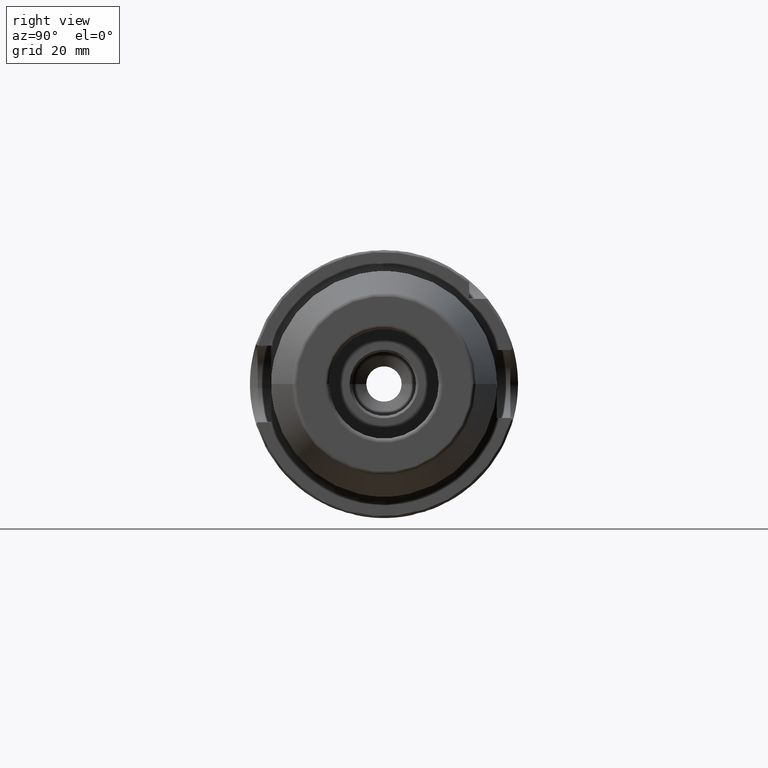
[diagram: clean part render]
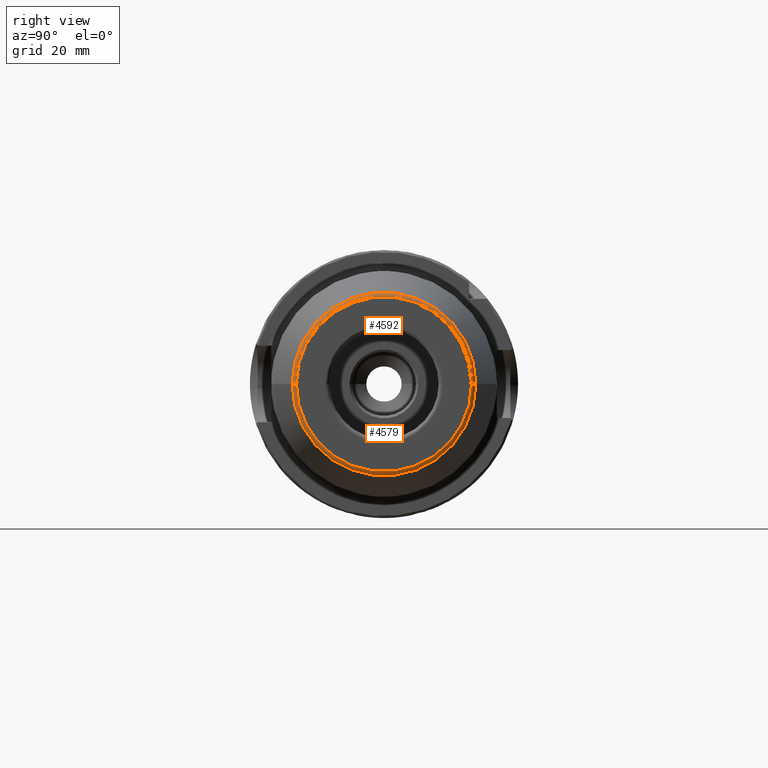
[diagram: same view with one multi-face feature highlighted, each face labeled with its STEP entity id]
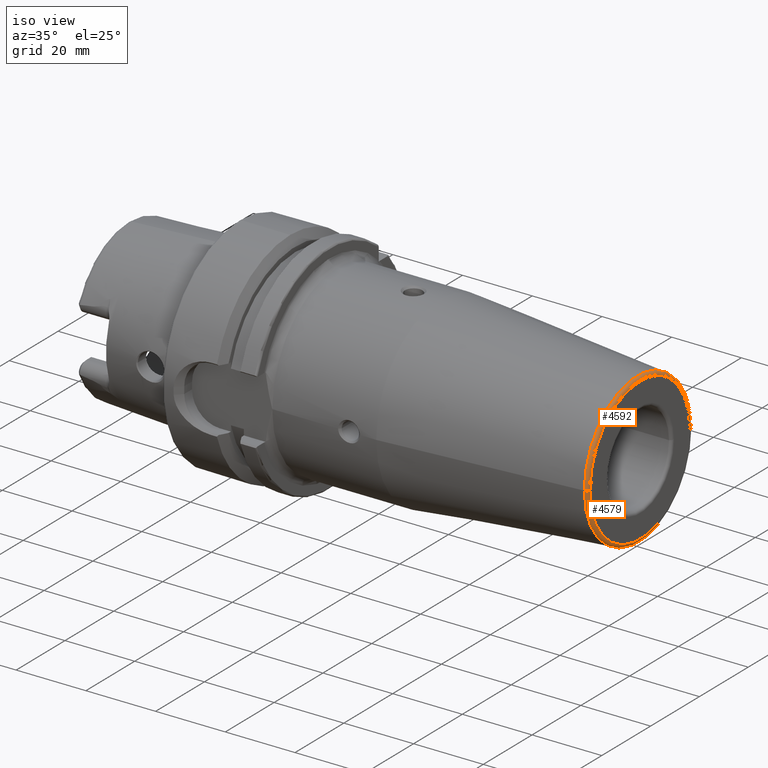
[diagram: same view with one multi-face feature highlighted, each face labeled with its STEP entity id]
A machine part, right view. The highlighted faces form ONE feature: a constant-radius fillet chain: 2 tangent blend faces with common blend radius 0.9906 mm. The faces share edges in the B-rep.
A second angle (iso view) of the same feature is appended — it is thin or edge-on in the first view.
Their STEP definitions:
[1] entity #4579 (Torus):
#1101=CARTESIAN_POINT('',(4.528E0,0.E0,0.E0));
#1102=DIRECTION('',(1.E0,0.E0,0.E0));
#1103=DIRECTION('',(0.E0,-1.E0,-3.704929512672E-9));
#1104=AXIS2_PLACEMENT_3D('',#1101,#1102,#1103);
#1121=CARTESIAN_POINT('',(4.489E0,-8.108261026165E-1,-3.004053573605E-9));
#1122=DIRECTION('',(0.E0,3.704929533305E-9,-1.E0));
#1123=DIRECTION('',(1.E0,0.E0,0.E0));
#1124=AXIS2_PLACEMENT_3D('',#1121,#1122,#1123);
#1126=CARTESIAN_POINT('',(4.489E0,8.108261026165E-1,3.004054198105E-9));
#1127=DIRECTION('',(0.E0,-3.704930303522E-9,1.E0));
#1128=DIRECTION('',(1.E0,0.E0,0.E0));
#1129=AXIS2_PLACEMENT_3D('',#1126,#1127,#1128);
#1140=CARTESIAN_POINT('',(4.492399073967E0,0.E0,0.E0));
#1141=DIRECTION('',(1.E0,0.E0,0.E0));
#1142=DIRECTION('',(0.E0,-1.E0,9.979166920228E-11));
#1143=AXIS2_PLACEMENT_3D('',#1140,#1141,#1142);
#3295=CARTESIAN_POINT('',(4.528E0,-8.108261026165E-1,-3.004053557228E-9));
#3296=CARTESIAN_POINT('',(4.528E0,8.108261026165E-1,3.004053818010E-9));
#3297=VERTEX_POINT('',#3295);
#3298=VERTEX_POINT('',#3296);
#3299=CARTESIAN_POINT('',(4.492399073967E0,-8.496776958420E-1,
8.479075555202E-11));
#3300=CARTESIAN_POINT('',(4.492399073967E0,8.496776958420E-1,
-8.479085960753E-11));
#3301=VERTEX_POINT('',#3299);
#3302=VERTEX_POINT('',#3300);
#4565=CARTESIAN_POINT('',(4.489E0,0.E0,0.E0));
#4566=DIRECTION('',(-1.E0,0.E0,0.E0));
#4567=DIRECTION('',(0.E0,-9.998776561193E-1,1.564202011658E-2));
#4568=AXIS2_PLACEMENT_3D('',#4565,#4566,#4567);
#4569=TOROIDAL_SURFACE('',#4568,8.108261026165E-1,3.9E-2);
#4570=ORIENTED_EDGE('',*,*,#4553,.T.);
#4572=ORIENTED_EDGE('',*,*,#4571,.T.);
#4574=ORIENTED_EDGE('',*,*,#4573,.F.);
#4576=ORIENTED_EDGE('',*,*,#4575,.F.);
#4577=EDGE_LOOP('',(#4570,#4572,#4574,#4576));
#4578=FACE_OUTER_BOUND('',#4577,.F.);
#4579=ADVANCED_FACE('',(#4578),#4569,.T.);
#1105=CIRCLE('',#1104,8.108261026165E-1);
#1125=CIRCLE('',#1124,3.9E-2);
#1130=CIRCLE('',#1129,3.9E-2);
#1144=CIRCLE('',#1143,8.496776958420E-1);
#4553=EDGE_CURVE('',#3297,#3298,#1105,.T.);
#4571=EDGE_CURVE('',#3298,#3302,#1130,.T.);
#4573=EDGE_CURVE('',#3301,#3302,#1144,.T.);
#4575=EDGE_CURVE('',#3297,#3301,#1125,.T.);
[2] entity #4592 (Torus):
#1106=CARTESIAN_POINT('',(4.528E0,0.E0,0.E0));
#1107=DIRECTION('',(1.E0,0.E0,0.E0));
#1108=DIRECTION('',(0.E0,1.E0,3.704930079226E-9));
#1109=AXIS2_PLACEMENT_3D('',#1106,#1107,#1108);
#1121=CARTESIAN_POINT('',(4.489E0,-8.108261026165E-1,-3.004053573605E-9));
#1122=DIRECTION('',(0.E0,3.704929533305E-9,-1.E0));
#1123=DIRECTION('',(1.E0,0.E0,0.E0));
#1124=AXIS2_PLACEMENT_3D('',#1121,#1122,#1123);
#1126=CARTESIAN_POINT('',(4.489E0,8.108261026165E-1,3.004054198105E-9));
#1127=DIRECTION('',(0.E0,-3.704930303522E-9,1.E0));
#1128=DIRECTION('',(1.E0,0.E0,0.E0));
#1129=AXIS2_PLACEMENT_3D('',#1126,#1127,#1128);
#1131=CARTESIAN_POINT('',(4.492399073967E0,0.E0,0.E0));
#1132=DIRECTION('',(1.E0,0.E0,0.E0));
#1133=DIRECTION('',(0.E0,1.E0,-9.979134757775E-11));
#1134=AXIS2_PLACEMENT_3D('',#1131,#1132,#1133);
#3295=CARTESIAN_POINT('',(4.528E0,-8.108261026165E-1,-3.004053557228E-9));
#3296=CARTESIAN_POINT('',(4.528E0,8.108261026165E-1,3.004053818010E-9));
#3297=VERTEX_POINT('',#3295);
#3298=VERTEX_POINT('',#3296);
#3299=CARTESIAN_POINT('',(4.492399073967E0,-8.496776958420E-1,
8.479075555202E-11));
#3300=CARTESIAN_POINT('',(4.492399073967E0,8.496776958420E-1,
-8.479085960753E-11));
#3301=VERTEX_POINT('',#3299);
#3302=VERTEX_POINT('',#3300);
#4580=CARTESIAN_POINT('',(4.489E0,0.E0,0.E0));
#4581=DIRECTION('',(-1.E0,0.E0,0.E0));
#4582=DIRECTION('',(0.E0,9.998776561193E-1,-1.564202011658E-2));
#4583=AXIS2_PLACEMENT_3D('',#4580,#4581,#4582);
#4584=TOROIDAL_SURFACE('',#4583,8.108261026165E-1,3.9E-2);
#4585=ORIENTED_EDGE('',*,*,#4555,.T.);
#4586=ORIENTED_EDGE('',*,*,#4575,.T.);
#4588=ORIENTED_EDGE('',*,*,#4587,.F.);
#4589=ORIENTED_EDGE('',*,*,#4571,.F.);
#4590=EDGE_LOOP('',(#4585,#4586,#4588,#4589));
#4591=FACE_OUTER_BOUND('',#4590,.F.);
#4592=ADVANCED_FACE('',(#4591),#4584,.T.);
#1110=CIRCLE('',#1109,8.108261026165E-1);
#1125=CIRCLE('',#1124,3.9E-2);
#1130=CIRCLE('',#1129,3.9E-2);
#1135=CIRCLE('',#1134,8.496776958420E-1);
#4555=EDGE_CURVE('',#3298,#3297,#1110,.T.);
#4571=EDGE_CURVE('',#3298,#3302,#1130,.T.);
#4575=EDGE_CURVE('',#3297,#3301,#1125,.T.);
#4587=EDGE_CURVE('',#3302,#3301,#1135,.T.);